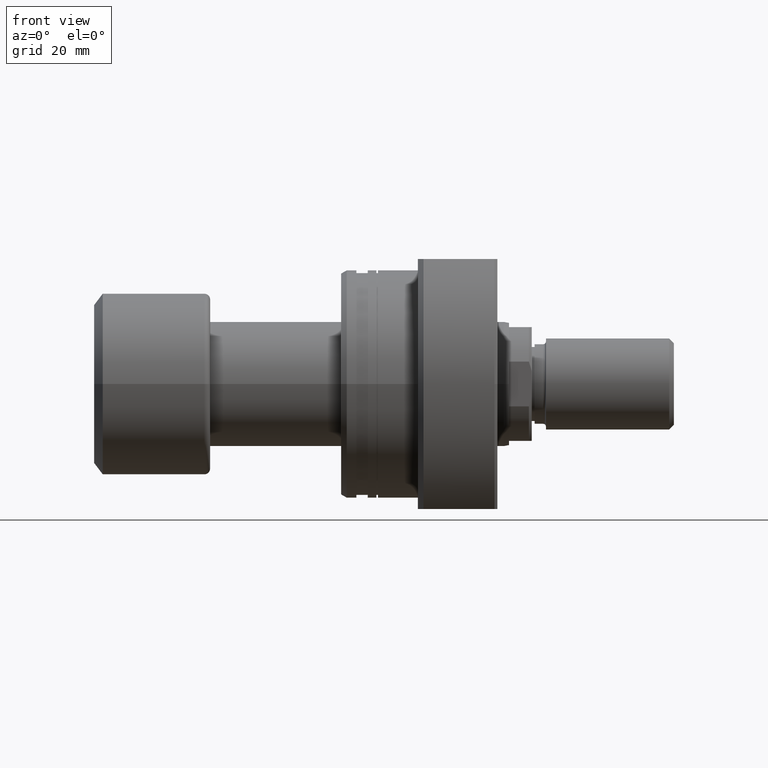
[diagram: clean part render]
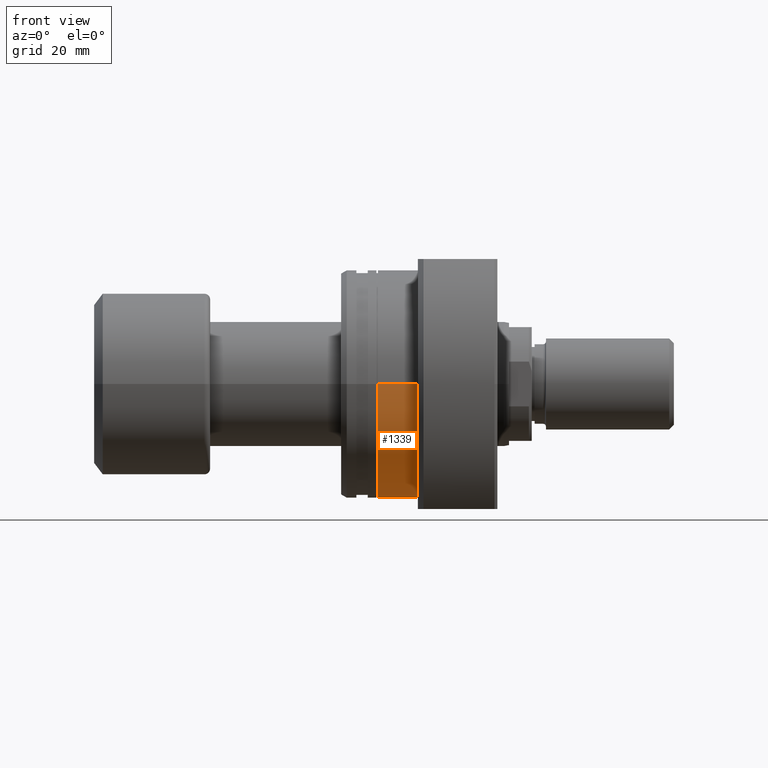
[diagram: same view with one face highlighted and labeled with its STEP entity id]
A machine part, front view. The second image highlights one B-rep face of the part: STEP entity #1339.
In plain terms, the highlighted cylindrical surface (partial cylindrical patch) has radius 20 mm, axis along (1, 0, 0).
Its self-contained STEP definition (entity closure, byte-faithful):
#176 = CARTESIAN_POINT ( 'NONE',  ( 27.50000000000000355, 19.99999999999999645, 0.000000000000000000 ) ) ;
#260 = LINE ( 'NONE', #1103, #1683 ) ;
#291 = EDGE_CURVE ( 'NONE', #1189, #2266, #260, .T. ) ;
#331 = AXIS2_PLACEMENT_3D ( 'NONE', #2330, #931, #3179 ) ;
#444 = VECTOR ( 'NONE', #2399, 1000.000000000000000 ) ;
#673 = CARTESIAN_POINT ( 'NONE',  ( 6.499999999999783284, 8.683859121226395531E-17, 0.000000000000000000 ) ) ;
#845 = DIRECTION ( 'NONE',  ( 0.000000000000000000, 1.000000000000000000, 0.000000000000000000 ) ) ;
#861 = AXIS2_PLACEMENT_3D ( 'NONE', #3680, #1448, #845 ) ;
#931 = DIRECTION ( 'NONE',  ( 1.000000000000000000, 1.335978326342566810E-17, -0.000000000000000000 ) ) ;
#1015 = ORIENTED_EDGE ( 'NONE', *, *, #1348, .F. ) ;
#1103 = CARTESIAN_POINT ( 'NONE',  ( 27.50000000000000355, -19.99999999999999645, 2.449293598294706119E-15 ) ) ;
#1120 = DIRECTION ( 'NONE',  ( 1.000000000000000000, 1.335978326342566810E-17, -0.000000000000000000 ) ) ;
#1174 = FACE_OUTER_BOUND ( 'NONE', #2831, .T. ) ;
#1189 = VERTEX_POINT ( 'NONE', #2715 ) ;
#1339 = ADVANCED_FACE ( 'NONE', ( #1174 ), #2067, .T. ) ;
#1348 = EDGE_CURVE ( 'NONE', #2266, #3581, #3539, .T. ) ;
#1428 = ORIENTED_EDGE ( 'NONE', *, *, #291, .F. ) ;
#1448 = DIRECTION ( 'NONE',  ( 1.000000000000000000, 1.335978326342566810E-17, -0.000000000000000000 ) ) ;
#1551 = CARTESIAN_POINT ( 'NONE',  ( 13.50000000000000355, 19.99999999999999645, 0.000000000000000000 ) ) ;
#1672 = CARTESIAN_POINT ( 'NONE',  ( 13.50000000000000355, -19.99999999999999645, 2.449293598294706119E-15 ) ) ;
#1683 = VECTOR ( 'NONE', #1120, 1000.000000000000000 ) ;
#1874 = AXIS2_PLACEMENT_3D ( 'NONE', #673, #3168, #3468 ) ;
#1875 = LINE ( 'NONE', #176, #444 ) ;
#2067 = CYLINDRICAL_SURFACE ( 'NONE', #861, 19.99999999999999645 ) ;
#2266 = VERTEX_POINT ( 'NONE', #1672 ) ;
#2330 = CARTESIAN_POINT ( 'NONE',  ( 13.50000000000000355, 1.803570740562465471E-16, 0.000000000000000000 ) ) ;
#2399 = DIRECTION ( 'NONE',  ( 1.000000000000000000, 1.335978326342566810E-17, -0.000000000000000000 ) ) ;
#2425 = VERTEX_POINT ( 'NONE', #2591 ) ;
#2546 = EDGE_CURVE ( 'NONE', #2425, #3581, #1875, .T. ) ;
#2591 = CARTESIAN_POINT ( 'NONE',  ( 6.499999999999783284, 19.99999999999999645, 0.000000000000000000 ) ) ;
#2625 = ORIENTED_EDGE ( 'NONE', *, *, #3440, .T. ) ;
#2715 = CARTESIAN_POINT ( 'NONE',  ( 6.499999999999783284, -19.99999999999999645, 2.449293598294706119E-15 ) ) ;
#2831 = EDGE_LOOP ( 'NONE', ( #1428, #2625, #3010, #1015 ) ) ;
#3010 = ORIENTED_EDGE ( 'NONE', *, *, #2546, .T. ) ;
#3123 = CIRCLE ( 'NONE', #1874, 19.99999999999999645 ) ;
#3168 = DIRECTION ( 'NONE',  ( 1.000000000000000000, 1.335978326342566810E-17, -0.000000000000000000 ) ) ;
#3179 = DIRECTION ( 'NONE',  ( 0.000000000000000000, 1.000000000000000000, 0.000000000000000000 ) ) ;
#3440 = EDGE_CURVE ( 'NONE', #1189, #2425, #3123, .T. ) ;
#3468 = DIRECTION ( 'NONE',  ( 0.000000000000000000, 1.000000000000000000, 0.000000000000000000 ) ) ;
#3539 = CIRCLE ( 'NONE', #331, 19.99999999999999645 ) ;
#3581 = VERTEX_POINT ( 'NONE', #1551 ) ;
#3680 = CARTESIAN_POINT ( 'NONE',  ( 27.50000000000000355, 3.673940397442059375E-16, 0.000000000000000000 ) ) ;